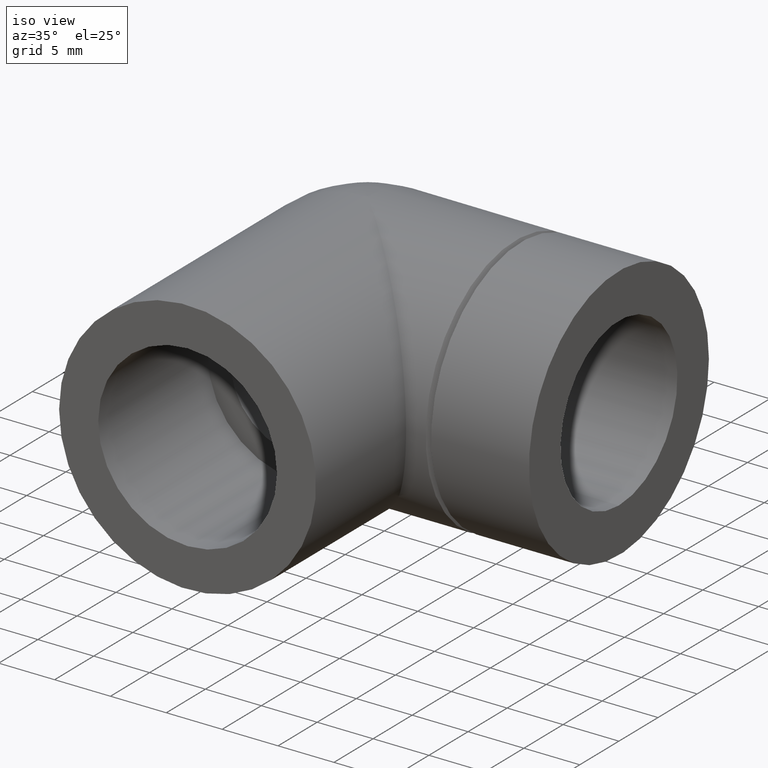
[diagram: clean part render]
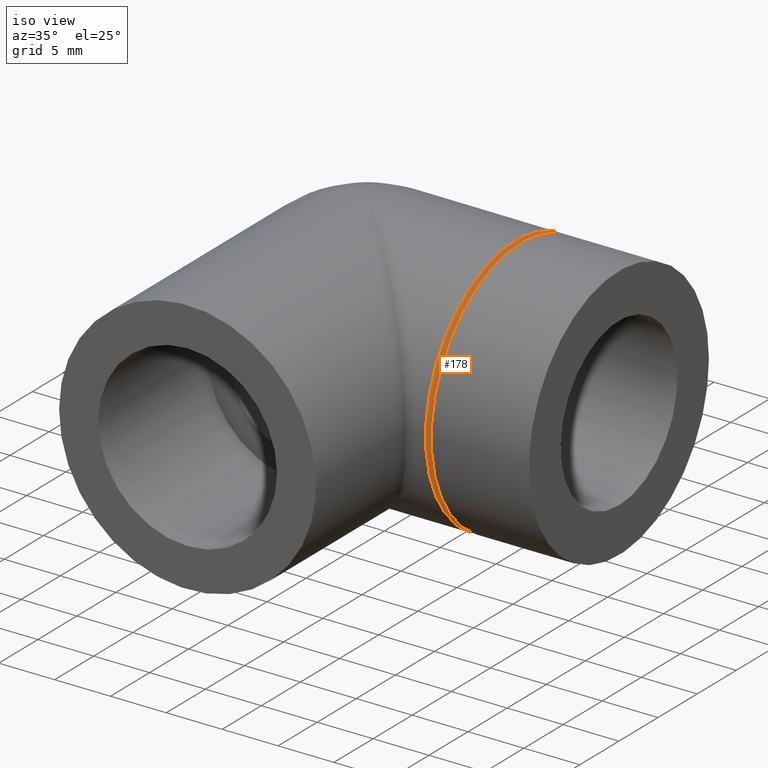
[diagram: same view with one face highlighted and labeled with its STEP entity id]
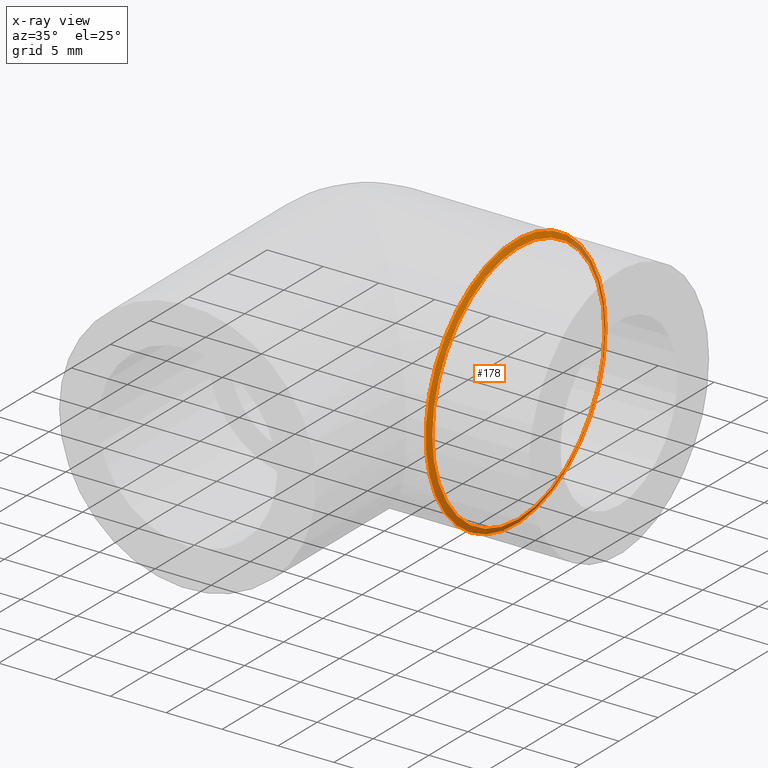
[diagram: x-ray of the same camera — body ghosted, the highlighted face saturated]
A machine part, iso view. The second image highlights one B-rep face of the part: STEP entity #178.
The next image is the same camera in x-ray: the body ghosted, the highlighted face saturated — about 16% of this face is hidden behind the body in this view.
In plain terms, the highlighted conical surface has half-angle 63.435 deg.
Its self-contained STEP definition (entity closure, byte-faithful):
#15=CONICAL_SURFACE('',#208,11.25,63.4349488229221);
#34=FACE_BOUND('',#75,.T.);
#49=FACE_OUTER_BOUND('',#74,.T.);
#74=EDGE_LOOP('',(#152));
#75=EDGE_LOOP('',(#153));
#93=CIRCLE('',#207,11.5);
#94=CIRCLE('',#209,11.);
#108=VERTEX_POINT('',#314);
#109=VERTEX_POINT('',#317);
#124=EDGE_CURVE('',#108,#108,#93,.T.);
#125=EDGE_CURVE('',#109,#109,#94,.T.);
#152=ORIENTED_EDGE('',*,*,#124,.T.);
#153=ORIENTED_EDGE('',*,*,#125,.F.);
#178=ADVANCED_FACE('',(#49,#34),#15,.T.);
#207=AXIS2_PLACEMENT_3D('',#315,#263,#264);
#208=AXIS2_PLACEMENT_3D('',#316,#265,#266);
#209=AXIS2_PLACEMENT_3D('',#318,#267,#268);
#263=DIRECTION('center_axis',(1.,0.,0.));
#264=DIRECTION('ref_axis',(0.,0.,-1.));
#265=DIRECTION('center_axis',(-1.,0.,0.));
#266=DIRECTION('ref_axis',(0.,1.,0.));
#267=DIRECTION('center_axis',(1.,0.,0.));
#268=DIRECTION('ref_axis',(0.,0.,-1.));
#314=CARTESIAN_POINT('',(13.25,11.5,0.));
#315=CARTESIAN_POINT('Origin',(13.25,0.,0.));
#316=CARTESIAN_POINT('Origin',(13.375,0.,0.));
#317=CARTESIAN_POINT('',(13.5,11.,0.));
#318=CARTESIAN_POINT('Origin',(13.5,0.,0.));